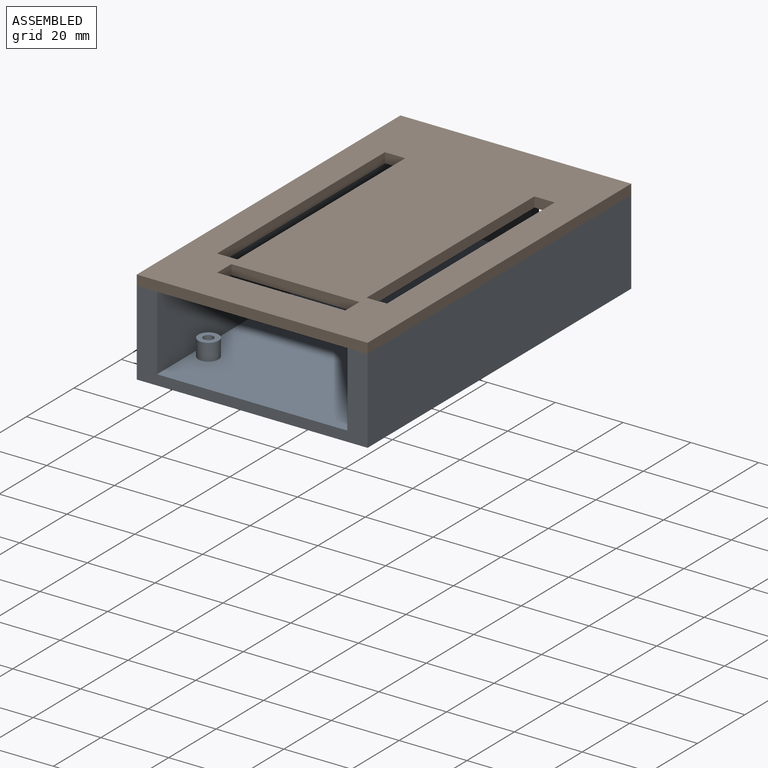
[diagram: assembled view]
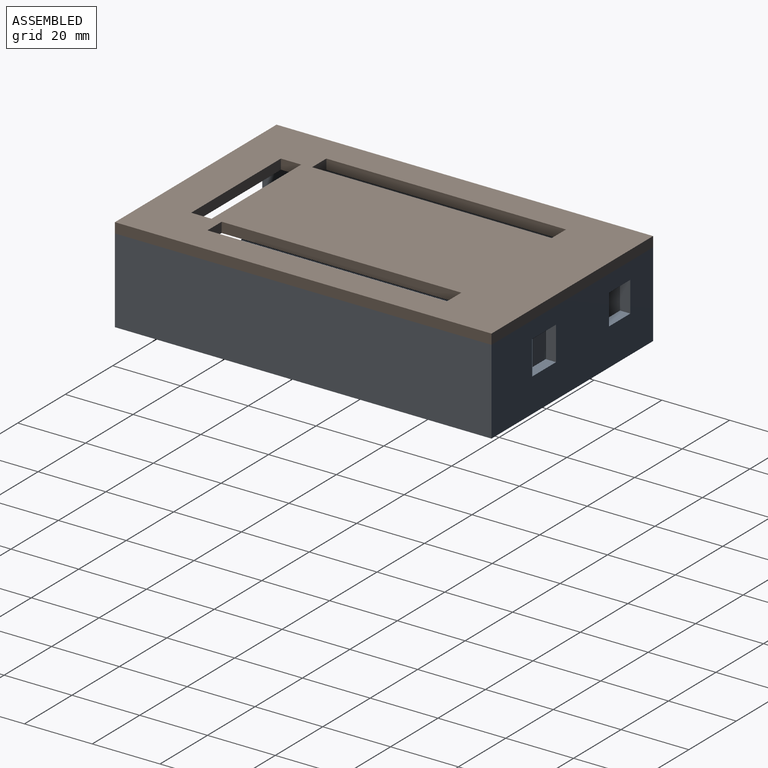
[diagram: assembled view, second angle]
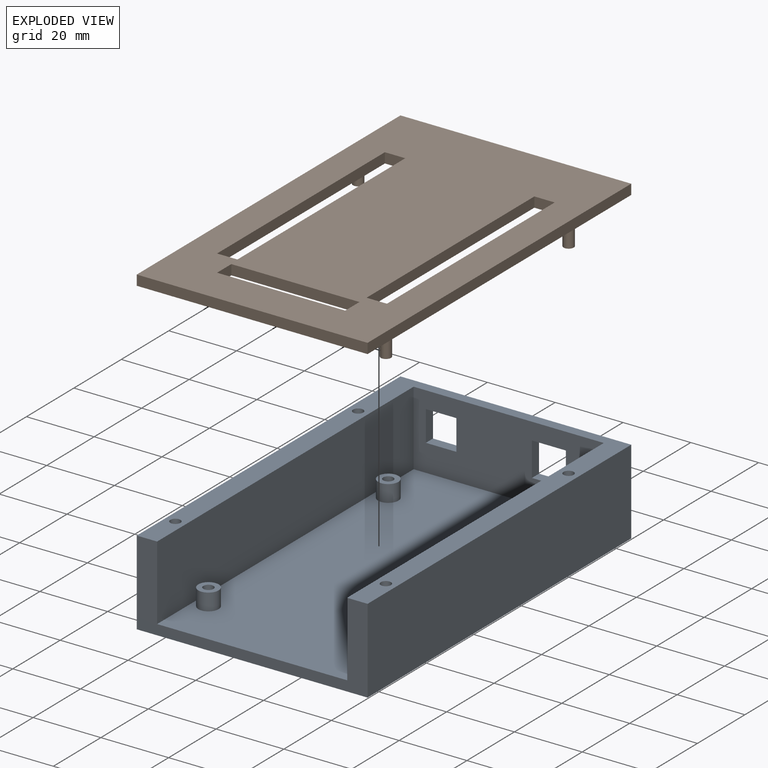
[diagram: exploded view]
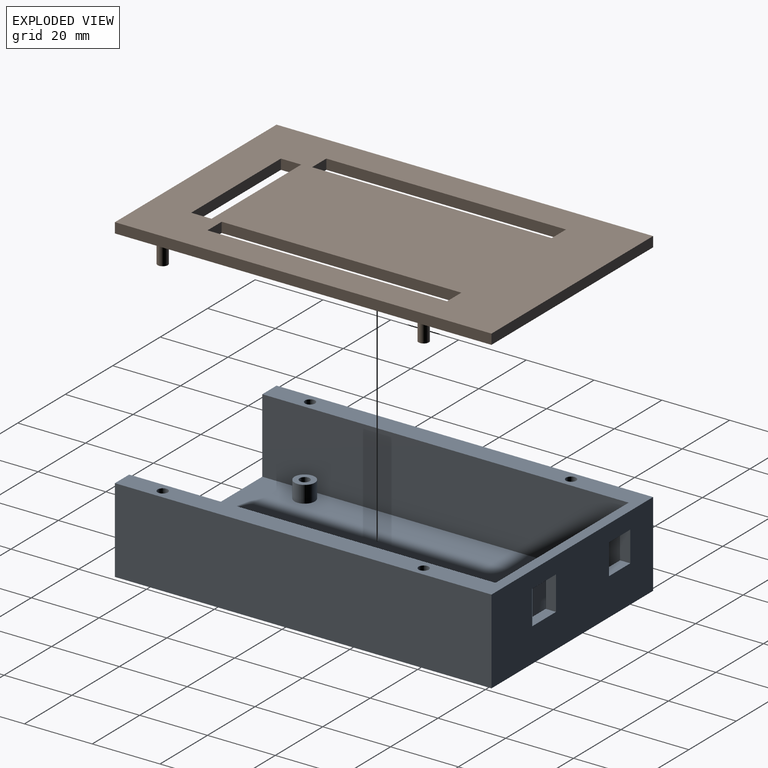
[diagram: exploded view, second angle]
ASSEMBLY  parts=2 mates=2
PART A: 42 faces, bbox 68.1x111.1x25 mm
  f0: plane 111.1x68.1mm, normal (0,0,1), area 1473.2mm2, adj f1,f2,f4,f5,f6,f32,f33,f35
  f1: plane 68.1x25mm, normal (0,-1,0), area 468.3mm2, adj f0,f3,f4,f6,f7,f32,f33
  f2: plane 68.1x25mm, normal (0,1,0), area 1521.5mm2, adj f0,f3,f24,f25,f26,f27,f28,f29
  f3: plane 111.1x68.1mm, normal (0,0,-1), area 7565.9mm2, adj f1,f2,f32,f33
  f4: plane 108.1x22mm, normal (-1,0,0), area 2378.2mm2, adj f0,f1,f5,f7
  f5: plane 56.1x22mm, normal (0,-1,0), area 1053.2mm2, adj f0,f4,f6,f7,f24,f25,f26,f27
  f6: plane 108.1x22mm, normal (1,0,0), area 2378.2mm2, adj f0,f1,f5,f7
  f7: plane 108.1x56.1mm, normal (0,0,1), area 5951.3mm2, adj f1,f4,f5,f6,f8,f10,f12,f14
  f8: cylinder r=3mm len=6mm, axis (0,0,-1), area 94.2mm2, adj f7,f9
  f9: plane 6x6mm, normal (0,0,1), area 21.2mm2, adj f8,f23
  f10: cylinder r=3mm len=6mm, axis (0,0,-1), area 94.2mm2, adj f7,f11
  f11: plane 6x6mm, normal (0,0,1), area 21.2mm2, adj f10,f21
  f12: cylinder r=3mm len=6mm, axis (0,0,-1), area 94.2mm2, adj f7,f13
  f13: plane 6x6mm, normal (0,0,1), area 21.2mm2, adj f12,f19
  f14: cylinder r=3mm len=6mm, axis (0,0,-1), area 94.2mm2, adj f7,f15
  f15: plane 6x6mm, normal (0,0,1), area 21.2mm2, adj f14,f17
  f16: cone r=0mm half-angle=59deg, axis (0,0,1), area 8.2mm2, adj f17
  f17: cylinder r=1.5mm len=6mm, axis (0,0,1), area 56.5mm2, adj f15,f16
  f18: cone r=0mm half-angle=59deg, axis (0,0,1), area 8.2mm2, adj f19
  f19: cylinder r=1.5mm len=6mm, axis (0,0,1), area 56.5mm2, adj f13,f18
  f20: cone r=0mm half-angle=59deg, axis (0,0,1), area 8.2mm2, adj f21
  f21: cylinder r=1.5mm len=6mm, axis (0,0,1), area 56.5mm2, adj f11,f20
  f22: cone r=0mm half-angle=59deg, axis (0,0,1), area 8.2mm2, adj f23
  f23: cylinder r=1.5mm len=6mm, axis (0,0,1), area 56.5mm2, adj f9,f22
  f24: plane 10x3mm, normal (0,0,1), area 30mm2, adj f2,f5,f25,f26
  f25: plane 10x3mm, normal (1,0,0), area 30mm2, adj f2,f5,f24,f27
  f26: plane 10x3mm, normal (-1,0,0), area 30mm2, adj f2,f5,f24,f27
  f27: plane 10x3mm, normal (0,0,-1), area 30mm2, adj f2,f5,f25,f26
  f28: plane 9x3mm, normal (0,0,1), area 27mm2, adj f2,f5,f29,f30
  f29: plane 9x3mm, normal (1,0,0), area 27mm2, adj f2,f5,f28,f31
  f30: plane 9x3mm, normal (-1,0,0), area 27mm2, adj f2,f5,f28,f31
  f31: plane 9x3mm, normal (0,0,-1), area 27mm2, adj f2,f5,f29,f30
  f32: plane 111.1x25mm, normal (1,0,0), area 2777.5mm2, adj f0,f1,f2,f3
  f33: plane 111.1x25mm, normal (-1,0,0), area 2777.5mm2, adj f0,f1,f2,f3
  f34: cone r=0mm half-angle=59deg, axis (0,0,1), area 8.2mm2, adj f35
  f35: cylinder r=1.5mm len=6mm, axis (0,0,1), area 56.5mm2, adj f0,f34
  f36: cone r=0mm half-angle=59deg, axis (0,0,1), area 8.2mm2, adj f37
  f37: cylinder r=1.5mm len=6mm, axis (0,0,1), area 56.5mm2, adj f0,f36
  f38: cone r=0mm half-angle=59deg, axis (0,0,1), area 8.2mm2, adj f39
  f39: cylinder r=1.5mm len=6mm, axis (0,0,1), area 56.5mm2, adj f0,f38
  f40: cone r=0mm half-angle=59deg, axis (0,0,1), area 8.2mm2, adj f41
  f41: cylinder r=1.5mm len=6mm, axis (0,0,1), area 56.5mm2, adj f0,f40
PART B: 26 faces, bbox 68.1x111.1x9 mm
  f0: plane 68.1x3mm, normal (0,1,0), area 204.3mm2, adj f1,f3,f4,f5
  f1: plane 111.1x3mm, normal (-1,0,0), area 333.3mm2, adj f0,f2,f4,f5
  f2: plane 68.1x3mm, normal (0,-1,0), area 204.3mm2, adj f1,f3,f4,f5
  f3: plane 111.1x3mm, normal (1,0,0), area 333.3mm2, adj f0,f2,f4,f5
  f4: plane 111.1x68.1mm, normal (0,0,1), area 6462.4mm2, adj f0,f1,f2,f3,f6,f8,f10,f12
  f5: plane 111.1x68.1mm, normal (0,0,-1), area 6490.7mm2, adj f0,f1,f2,f3,f14,f15,f16,f17
  f6: cylinder r=1.5mm len=6mm, axis (0,0,-1), area 56.5mm2, adj f4,f7
  f7: plane 3x3mm, normal (0,0,1), area 7.1mm2, adj f6
  f8: cylinder r=1.5mm len=6mm, axis (0,0,-1), area 56.5mm2, adj f4,f9
  f9: plane 3x3mm, normal (0,0,1), area 7.1mm2, adj f8
  f10: cylinder r=1.5mm len=6mm, axis (0,0,-1), area 56.5mm2, adj f4,f11
  f11: plane 3x3mm, normal (0,0,1), area 7.1mm2, adj f10
  f12: cylinder r=1.5mm len=6mm, axis (0,0,-1), area 56.5mm2, adj f4,f13
  f13: plane 3x3mm, normal (0,0,1), area 7.1mm2, adj f12
  f14: plane 70.7x3mm, normal (1,0,0), area 212.1mm2, adj f4,f5,f15,f16
  f15: plane 6x3mm, normal (0,-1,0), area 18mm2, adj f4,f5,f14,f17
  f16: plane 6x3mm, normal (0,1,0), area 18mm2, adj f4,f5,f14,f17
  f17: plane 70.7x3mm, normal (-1,0,0), area 212.1mm2, adj f4,f5,f15,f16
  f18: plane 6x3mm, normal (1,0,0), area 18mm2, adj f4,f5,f19,f20
  f19: plane 37.8x3mm, normal (0,-1,0), area 113.4mm2, adj f4,f5,f18,f21
  f20: plane 37.8x3mm, normal (0,1,0), area 113.4mm2, adj f4,f5,f18,f21
  f21: plane 6x3mm, normal (-1,0,0), area 18mm2, adj f4,f5,f19,f20
  f22: plane 6x3mm, normal (0,-1,0), area 18mm2, adj f4,f5,f23,f24
  f23: plane 70.7x3mm, normal (-1,0,0), area 212.1mm2, adj f4,f5,f22,f25
  f24: plane 70.7x3mm, normal (1,0,0), area 212.1mm2, adj f4,f5,f22,f25
  f25: plane 6x3mm, normal (0,1,0), area 18mm2, adj f4,f5,f23,f24
PLACE A t=(-31.9,-12.26,-3.26)mm fixed
PLACE B rot(axis=(0,1,0),180deg) t=(44.67,-31.16,24.74)mm
MATE fastened B.f4 <-> A.f0  axis (0,0,-1) through (2.15,-67.81,21.74)mm
MATE cylindrical B.f12 <-> A.f38  axis (0,0,1) through (-0.85,-55.81,18.74)mm
